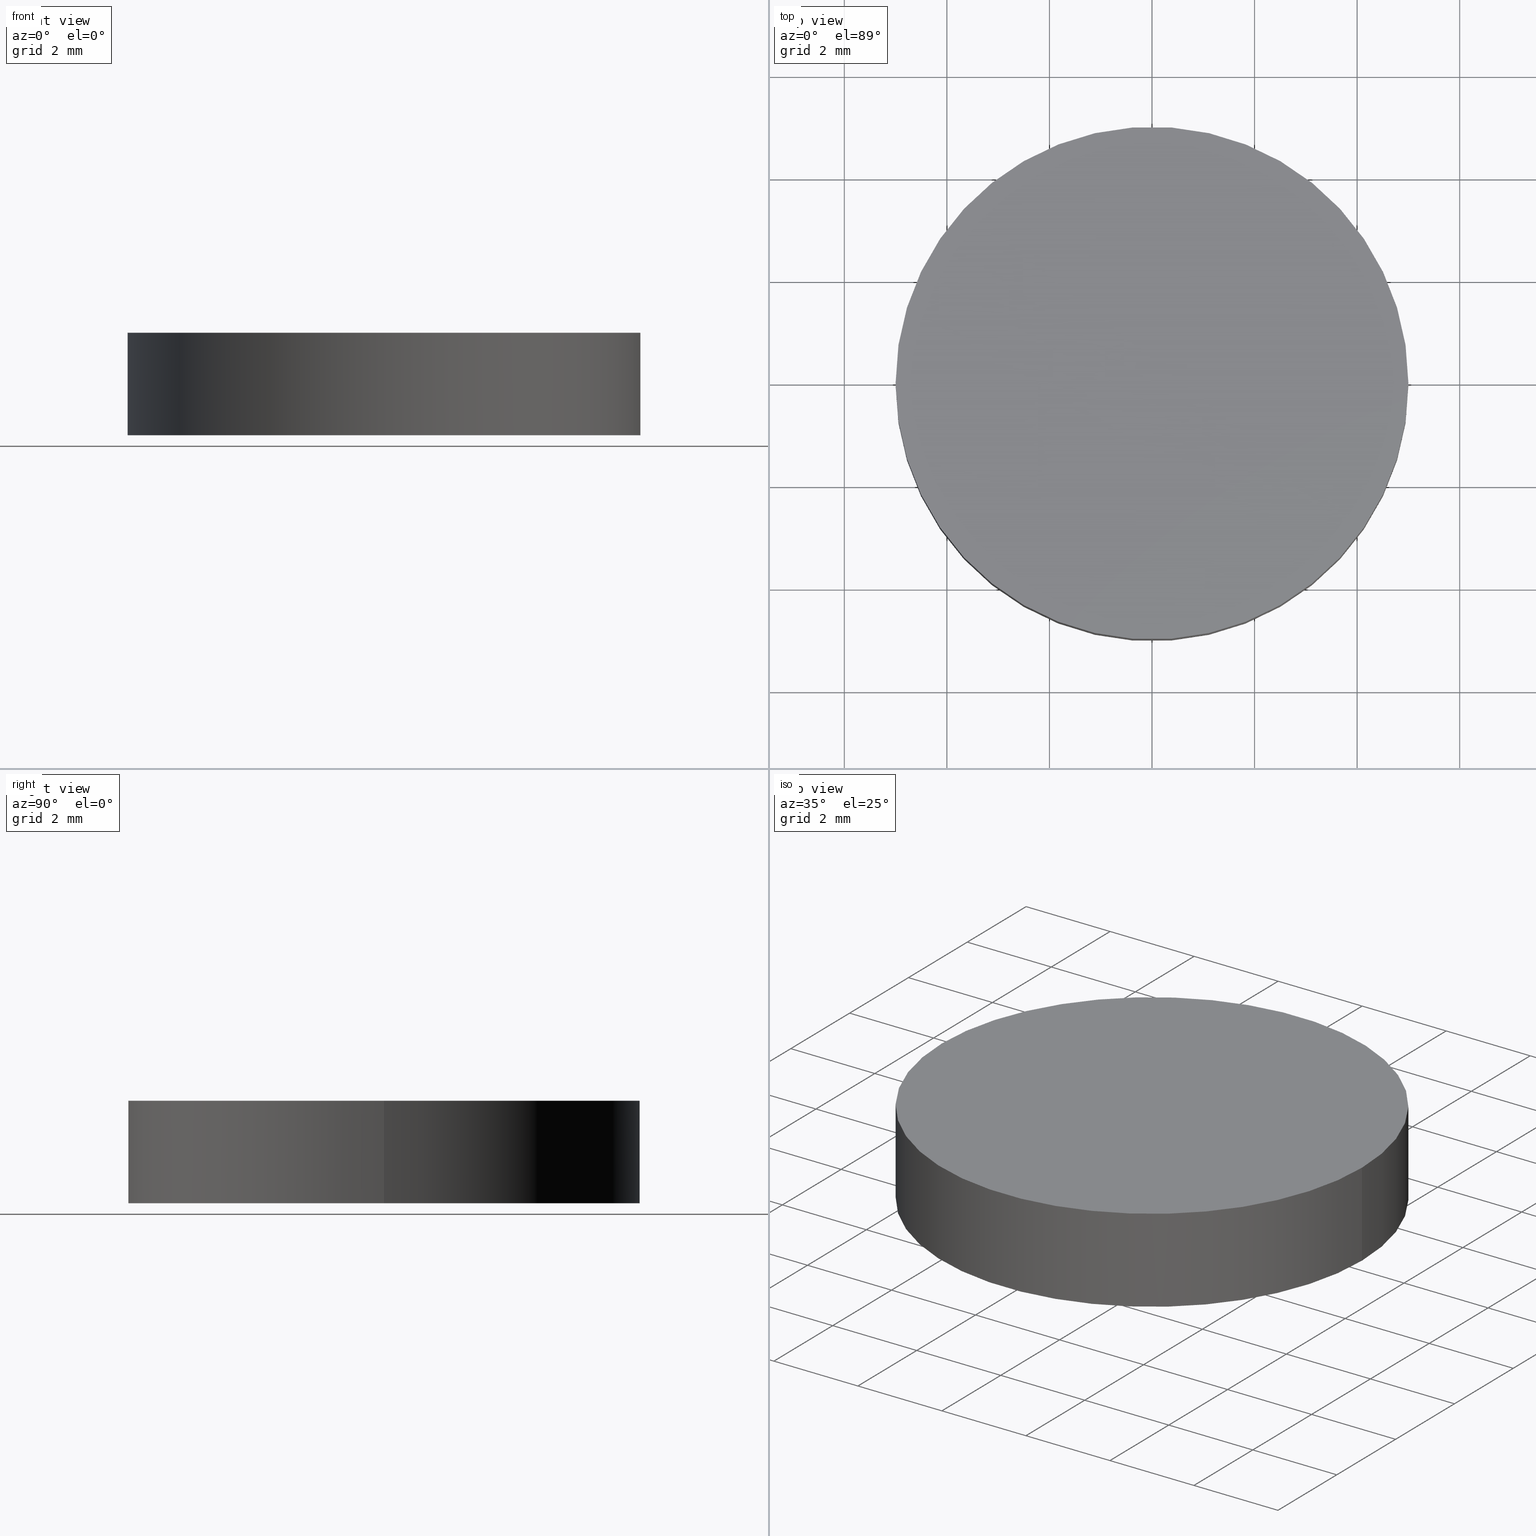
[diagram: canonical four-view strip — front | top / right | iso, engineering-drawing reading convention]
A machine part, canonical four-view strip (front | top / right | iso — engineering-drawing reading convention). The complete STEP part file that produces these views, byte-faithful:
ISO-10303-21;
HEADER;
FILE_DESCRIPTION (( 'STEP AP214' ),
    '1' );
FILE_NAME ('180001.STEP',
    '2019-07-09T03:29:33',
    ( 'user' ),
    ( '΢���й�' ),
    'SwSTEP 2.0',
    'SolidWorks 2016',
    '' );
FILE_SCHEMA (( 'AUTOMOTIVE_DESIGN' ));
ENDSEC;

DATA;
#1 = SURFACE_STYLE_FILL_AREA ( #21 ) ;
#2 = CARTESIAN_POINT ( 'NONE',  ( -5.000000000000000000, 0.0000000000000000000, 2.000000000000000000 ) ) ;
#3 = STYLED_ITEM ( 'NONE', ( #26 ), #95 ) ;
#4 = AXIS2_PLACEMENT_3D ( 'NONE', #128, #68, #135 ) ;
#5 = LINE ( 'NONE', #91, #116 ) ;
#6 = DIRECTION ( 'NONE',  ( 1.000000000000000000, 0.0000000000000000000, 0.0000000000000000000 ) ) ;
#7 = EDGE_CURVE ( 'NONE', #10, #130, #5, .T. ) ;
#8 = CARTESIAN_POINT ( 'NONE',  ( 5.000000000000000000, 6.123233995736766300E-016, 2.000000000000000000 ) ) ;
#9 = CIRCLE ( 'NONE', #103, 5.000000000000000000 ) ;
#10 = VERTEX_POINT ( 'NONE', #8 ) ;
#11 = PRESENTATION_LAYER_ASSIGNMENT (  '', '', ( #3 ) ) ;
#12 = PRODUCT_CONTEXT ( 'NONE', #62, 'mechanical' ) ;
#13 =( NAMED_UNIT ( * ) PLANE_ANGLE_UNIT ( ) SI_UNIT ( $, .RADIAN. ) );
#14 = UNCERTAINTY_MEASURE_WITH_UNIT (LENGTH_MEASURE( 1.000000000000000100E-005 ), #94, 'distance_accuracy_value', 'NONE');
#15 = SURFACE_STYLE_FILL_AREA ( #52 ) ;
#16 = DIRECTION ( 'NONE',  ( 1.000000000000000000, 0.0000000000000000000, 0.0000000000000000000 ) ) ;
#17 = ORIENTED_EDGE ( 'NONE', *, *, #45, .F. ) ;
#18 = MECHANICAL_DESIGN_GEOMETRIC_PRESENTATION_REPRESENTATION (  '', ( #3 ), #29 ) ;
#19 = FILL_AREA_STYLE_COLOUR ( '', #121 ) ;
#20 = EDGE_LOOP ( 'NONE', ( #40, #88, #74, #66 ) ) ;
#21 = FILL_AREA_STYLE ('',( #113 ) ) ;
#22 = DIRECTION ( 'NONE',  ( 0.0000000000000000000, 0.0000000000000000000, 1.000000000000000000 ) ) ;
#23 = DIRECTION ( 'NONE',  ( 1.000000000000000000, 0.0000000000000000000, 0.0000000000000000000 ) ) ;
#24 = ADVANCED_FACE ( 'NONE', ( #86 ), #108, .T. ) ;
#25 = EDGE_LOOP ( 'NONE', ( #100, #96 ) ) ;
#26 = PRESENTATION_STYLE_ASSIGNMENT (( #44 ) ) ;
#27 = CARTESIAN_POINT ( 'NONE',  ( 0.0000000000000000000, 0.0000000000000000000, 2.000000000000000000 ) ) ;
#28 = AXIS2_PLACEMENT_3D ( 'NONE', #70, #22, #71 ) ;
#29 =( GEOMETRIC_REPRESENTATION_CONTEXT ( 3 ) GLOBAL_UNCERTAINTY_ASSIGNED_CONTEXT ( ( #33 ) ) GLOBAL_UNIT_ASSIGNED_CONTEXT ( ( #118, #93, #35 ) ) REPRESENTATION_CONTEXT ( 'NONE', 'WORKASPACE' ) );
#30 = FACE_OUTER_BOUND ( 'NONE', #105, .T. ) ;
#31 = DIRECTION ( 'NONE',  ( -0.0000000000000000000, -0.0000000000000000000, -1.000000000000000000 ) ) ;
#32 = SHAPE_DEFINITION_REPRESENTATION ( #120, #95 ) ;
#33 = UNCERTAINTY_MEASURE_WITH_UNIT (LENGTH_MEASURE( 1.000000000000000100E-005 ), #118, 'distance_accuracy_value', 'NONE');
#34 = PRODUCT_DEFINITION ( 'δ֪', '', #41, #99 ) ;
#35 =( NAMED_UNIT ( * ) SI_UNIT ( $, .STERADIAN. ) SOLID_ANGLE_UNIT ( ) );
#36 = STYLED_ITEM ( 'NONE', ( #84 ), #87 ) ;
#37 = CARTESIAN_POINT ( 'NONE',  ( 0.0000000000000000000, 0.0000000000000000000, 0.0000000000000000000 ) ) ;
#38 = LINE ( 'NONE', #48, #57 ) ;
#39 = EDGE_CURVE ( 'NONE', #125, #77, #38, .T. ) ;
#40 = ORIENTED_EDGE ( 'NONE', *, *, #7, .F. ) ;
#41 = PRODUCT_DEFINITION_FORMATION_WITH_SPECIFIED_SOURCE ( '�κ�', '', #106, .NOT_KNOWN. ) ;
#42 = CARTESIAN_POINT ( 'NONE',  ( -5.000000000000000000, 0.0000000000000000000, 0.0000000000000000000 ) ) ;
#43 = CYLINDRICAL_SURFACE ( 'NONE', #124, 5.000000000000000000 ) ;
#44 = SURFACE_STYLE_USAGE ( .BOTH. , #133 ) ;
#45 = EDGE_CURVE ( 'NONE', #10, #125, #80, .T. ) ;
#46 = PRODUCT_RELATED_PRODUCT_CATEGORY ( 'part', '', ( #106 ) ) ;
#47 = ORIENTED_EDGE ( 'NONE', *, *, #139, .T. ) ;
#48 = CARTESIAN_POINT ( 'NONE',  ( -5.000000000000000000, 0.0000000000000000000, 2.000000000000000000 ) ) ;
#49 = PLANE ( 'NONE',  #67 ) ;
#50 = DIRECTION ( 'NONE',  ( -0.0000000000000000000, -0.0000000000000000000, -1.000000000000000000 ) ) ;
#51 = FACE_OUTER_BOUND ( 'NONE', #136, .T. ) ;
#52 = FILL_AREA_STYLE ('',( #19 ) ) ;
#53 = DIRECTION ( 'NONE',  ( 1.000000000000000000, 0.0000000000000000000, 0.0000000000000000000 ) ) ;
#54 = ORIENTED_EDGE ( 'NONE', *, *, #39, .F. ) ;
#55 = COLOUR_RGB ( '',1.000000000000000000, 1.000000000000000000, 1.000000000000000000 ) ;
#56 = DIRECTION ( 'NONE',  ( 0.0000000000000000000, 0.0000000000000000000, 1.000000000000000000 ) ) ;
#57 = VECTOR ( 'NONE', #112, 1000.000000000000000 ) ;
#58 = DIRECTION ( 'NONE',  ( -1.000000000000000000, 0.0000000000000000000, 0.0000000000000000000 ) ) ;
#59 = DIRECTION ( 'NONE',  ( 1.000000000000000000, 0.0000000000000000000, -0.0000000000000000000 ) ) ;
#60 = ORIENTED_EDGE ( 'NONE', *, *, #117, .T. ) ;
#61 = APPLICATION_CONTEXT ( 'automotive_design' ) ;
#62 = APPLICATION_CONTEXT ( 'automotive_design' ) ;
#63 = ADVANCED_FACE ( 'NONE', ( #138 ), #101, .F. ) ;
#64 = AXIS2_PLACEMENT_3D ( 'NONE', #90, #78, #6 ) ;
#65 = ORIENTED_EDGE ( 'NONE', *, *, #7, .T. ) ;
#66 = ORIENTED_EDGE ( 'NONE', *, *, #126, .T. ) ;
#67 = AXIS2_PLACEMENT_3D ( 'NONE', #127, #69, #59 ) ;
#68 = DIRECTION ( 'NONE',  ( 0.0000000000000000000, 0.0000000000000000000, 1.000000000000000000 ) ) ;
#69 = DIRECTION ( 'NONE',  ( 0.0000000000000000000, 0.0000000000000000000, 1.000000000000000000 ) ) ;
#70 = CARTESIAN_POINT ( 'NONE',  ( 0.0000000000000000000, 0.0000000000000000000, 0.0000000000000000000 ) ) ;
#71 = DIRECTION ( 'NONE',  ( 1.000000000000000000, 0.0000000000000000000, 0.0000000000000000000 ) ) ;
#72 = APPLICATION_PROTOCOL_DEFINITION ( 'draft international standard', 'automotive_design', 1998, #62 ) ;
#73 = ADVANCED_FACE ( 'NONE', ( #51 ), #49, .T. ) ;
#74 = ORIENTED_EDGE ( 'NONE', *, *, #39, .T. ) ;
#75 = CARTESIAN_POINT ( 'NONE',  ( 5.000000000000000000, 6.123233995736766300E-016, 0.0000000000000000000 ) ) ;
#76 = PRESENTATION_LAYER_ASSIGNMENT (  '', '', ( #36 ) ) ;
#77 = VERTEX_POINT ( 'NONE', #42 ) ;
#78 = DIRECTION ( 'NONE',  ( 0.0000000000000000000, 0.0000000000000000000, 1.000000000000000000 ) ) ;
#79 = DIRECTION ( 'NONE',  ( -1.000000000000000000, 0.0000000000000000000, 0.0000000000000000000 ) ) ;
#80 = CIRCLE ( 'NONE', #64, 5.000000000000000000 ) ;
#81 = MECHANICAL_DESIGN_GEOMETRIC_PRESENTATION_REPRESENTATION (  '', ( #36 ), #89 ) ;
#82 =( NAMED_UNIT ( * ) SI_UNIT ( $, .STERADIAN. ) SOLID_ANGLE_UNIT ( ) );
#83 = UNCERTAINTY_MEASURE_WITH_UNIT (LENGTH_MEASURE( 1.000000000000000100E-005 ), #137, 'distance_accuracy_value', 'NONE');
#84 = PRESENTATION_STYLE_ASSIGNMENT (( #92 ) ) ;
#85 = DIRECTION ( 'NONE',  ( 0.0000000000000000000, 0.0000000000000000000, 1.000000000000000000 ) ) ;
#86 = FACE_OUTER_BOUND ( 'NONE', #20, .T. ) ;
#87 = MANIFOLD_SOLID_BREP ( '͹̨-����1', #134 ) ;
#88 = ORIENTED_EDGE ( 'NONE', *, *, #117, .F. ) ;
#89 =( GEOMETRIC_REPRESENTATION_CONTEXT ( 3 ) GLOBAL_UNCERTAINTY_ASSIGNED_CONTEXT ( ( #83 ) ) GLOBAL_UNIT_ASSIGNED_CONTEXT ( ( #137, #129, #131 ) ) REPRESENTATION_CONTEXT ( 'NONE', 'WORKASPACE' ) );
#90 = CARTESIAN_POINT ( 'NONE',  ( 0.0000000000000000000, 0.0000000000000000000, 2.000000000000000000 ) ) ;
#91 = CARTESIAN_POINT ( 'NONE',  ( 5.000000000000000000, 6.123233995736766300E-016, 2.000000000000000000 ) ) ;
#92 = SURFACE_STYLE_USAGE ( .BOTH. , #114 ) ;
#93 =( NAMED_UNIT ( * ) PLANE_ANGLE_UNIT ( ) SI_UNIT ( $, .RADIAN. ) );
#94 =( LENGTH_UNIT ( ) NAMED_UNIT ( * ) SI_UNIT ( .MILLI., .METRE. ) );
#95 = ADVANCED_BREP_SHAPE_REPRESENTATION ( '180001', ( #87, #28 ), #132 ) ;
#96 = ORIENTED_EDGE ( 'NONE', *, *, #139, .F. ) ;
#97 = CARTESIAN_POINT ( 'NONE',  ( 0.0000000000000000000, 0.0000000000000000000, 2.000000000000000000 ) ) ;
#98 = AXIS2_PLACEMENT_3D ( 'NONE', #27, #85, #16 ) ;
#99 = PRODUCT_DEFINITION_CONTEXT ( 'detailed design', #61, 'design' ) ;
#100 = ORIENTED_EDGE ( 'NONE', *, *, #126, .F. ) ;
#101 = PLANE ( 'NONE',  #4 ) ;
#102 = CIRCLE ( 'NONE', #98, 5.000000000000000000 ) ;
#103 = AXIS2_PLACEMENT_3D ( 'NONE', #37, #104, #23 ) ;
#104 = DIRECTION ( 'NONE',  ( 0.0000000000000000000, 0.0000000000000000000, 1.000000000000000000 ) ) ;
#105 = EDGE_LOOP ( 'NONE', ( #17, #65, #47, #54 ) ) ;
#106 = PRODUCT ( '180001', '180001', '', ( #12 ) ) ;
#107 = CARTESIAN_POINT ( 'NONE',  ( 0.0000000000000000000, 0.0000000000000000000, 2.000000000000000000 ) ) ;
#108 = CYLINDRICAL_SURFACE ( 'NONE', #115, 5.000000000000000000 ) ;
#109 = DIRECTION ( 'NONE',  ( -0.0000000000000000000, -0.0000000000000000000, -1.000000000000000000 ) ) ;
#110 = CIRCLE ( 'NONE', #111, 5.000000000000000000 ) ;
#111 = AXIS2_PLACEMENT_3D ( 'NONE', #123, #56, #53 ) ;
#112 = DIRECTION ( 'NONE',  ( -0.0000000000000000000, -0.0000000000000000000, -1.000000000000000000 ) ) ;
#113 = FILL_AREA_STYLE_COLOUR ( '', #55 ) ;
#114 = SURFACE_SIDE_STYLE ('',( #1 ) ) ;
#115 = AXIS2_PLACEMENT_3D ( 'NONE', #107, #31, #79 ) ;
#116 = VECTOR ( 'NONE', #50, 1000.000000000000000 ) ;
#117 = EDGE_CURVE ( 'NONE', #125, #10, #102, .T. ) ;
#118 =( LENGTH_UNIT ( ) NAMED_UNIT ( * ) SI_UNIT ( .MILLI., .METRE. ) );
#119 = ADVANCED_FACE ( 'NONE', ( #30 ), #43, .T. ) ;
#120 = PRODUCT_DEFINITION_SHAPE ( 'NONE', 'NONE',  #34 ) ;
#121 = COLOUR_RGB ( '',1.000000000000000000, 1.000000000000000000, 1.000000000000000000 ) ;
#122 = ORIENTED_EDGE ( 'NONE', *, *, #45, .T. ) ;
#123 = CARTESIAN_POINT ( 'NONE',  ( 0.0000000000000000000, 0.0000000000000000000, 0.0000000000000000000 ) ) ;
#124 = AXIS2_PLACEMENT_3D ( 'NONE', #97, #109, #58 ) ;
#125 = VERTEX_POINT ( 'NONE', #2 ) ;
#126 = EDGE_CURVE ( 'NONE', #77, #130, #110, .T. ) ;
#127 = CARTESIAN_POINT ( 'NONE',  ( 0.0000000000000000000, 0.0000000000000000000, 2.000000000000000000 ) ) ;
#128 = CARTESIAN_POINT ( 'NONE',  ( 0.0000000000000000000, 0.0000000000000000000, 0.0000000000000000000 ) ) ;
#129 =( NAMED_UNIT ( * ) PLANE_ANGLE_UNIT ( ) SI_UNIT ( $, .RADIAN. ) );
#130 = VERTEX_POINT ( 'NONE', #75 ) ;
#131 =( NAMED_UNIT ( * ) SI_UNIT ( $, .STERADIAN. ) SOLID_ANGLE_UNIT ( ) );
#132 =( GEOMETRIC_REPRESENTATION_CONTEXT ( 3 ) GLOBAL_UNCERTAINTY_ASSIGNED_CONTEXT ( ( #14 ) ) GLOBAL_UNIT_ASSIGNED_CONTEXT ( ( #94, #13, #82 ) ) REPRESENTATION_CONTEXT ( 'NONE', 'WORKASPACE' ) );
#133 = SURFACE_SIDE_STYLE ('',( #15 ) ) ;
#134 = CLOSED_SHELL ( 'NONE', ( #119, #24, #73, #63 ) ) ;
#135 = DIRECTION ( 'NONE',  ( 1.000000000000000000, 0.0000000000000000000, -0.0000000000000000000 ) ) ;
#136 = EDGE_LOOP ( 'NONE', ( #60, #122 ) ) ;
#137 =( LENGTH_UNIT ( ) NAMED_UNIT ( * ) SI_UNIT ( .MILLI., .METRE. ) );
#138 = FACE_OUTER_BOUND ( 'NONE', #25, .T. ) ;
#139 = EDGE_CURVE ( 'NONE', #130, #77, #9, .T. ) ;
#140 = APPLICATION_PROTOCOL_DEFINITION ( 'draft international standard', 'automotive_design', 1998, #61 ) ;
ENDSEC;
END-ISO-10303-21;
